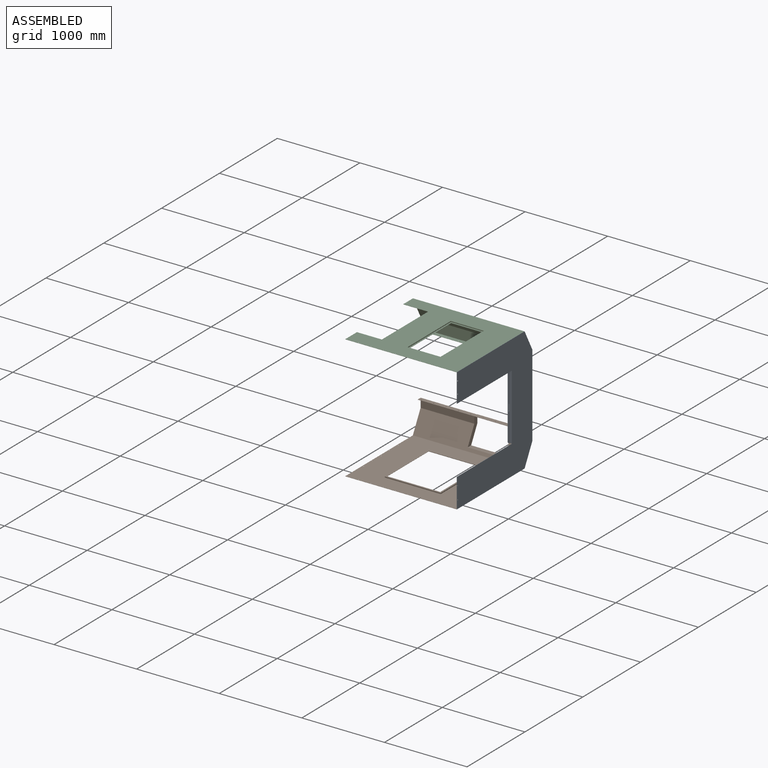
[diagram: assembled view]
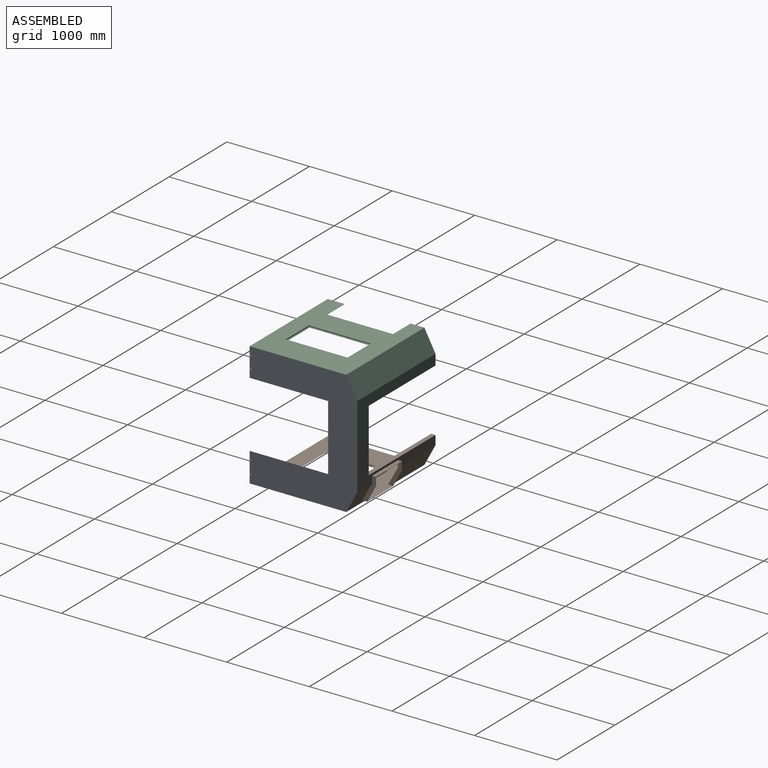
[diagram: assembled view, second angle]
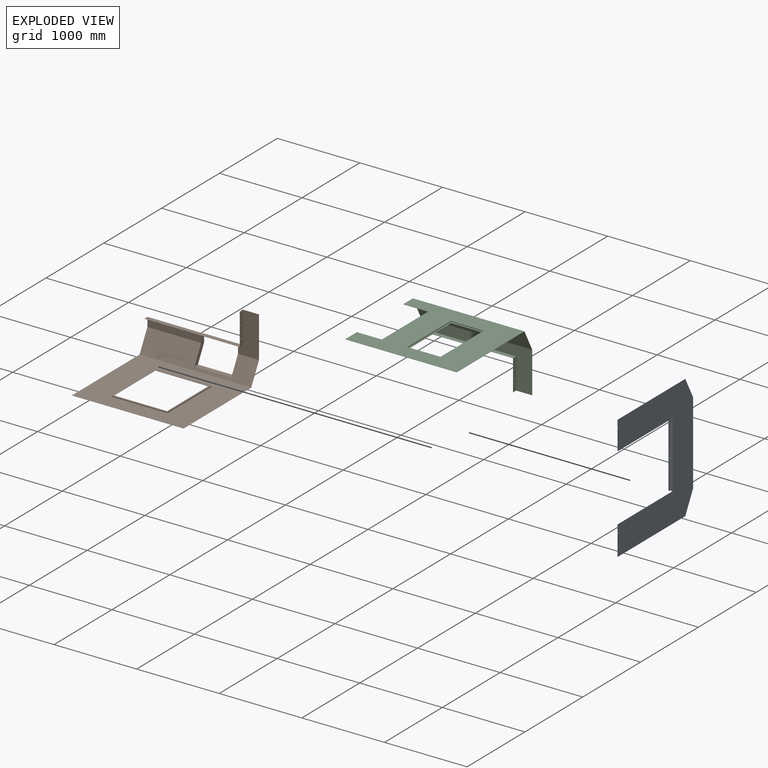
[diagram: exploded view]
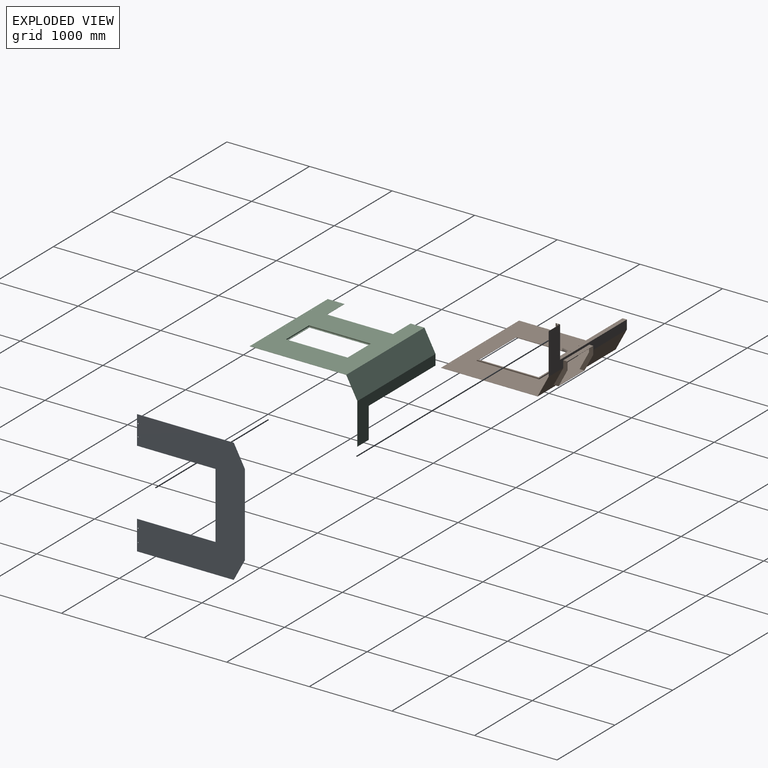
[diagram: exploded view, second angle]
ASSEMBLY  parts=3 mates=2
PART A: 30 faces, bbox 52x1304.5x1501 mm
  f0: plane 352x5mm, normal (0,-1,0), area 1760mm2, adj f1,f2,f3,f8
  f1: plane 352x15mm, normal (1,0,0), area 5280mm2, adj f0,f3,f8,f11
  f2: plane 352x15mm, normal (-1,0,0), area 5280mm2, adj f0,f3,f8,f11
  f3: plane 15x5mm, normal (0,0,1), area 75mm2, adj f0,f1,f2,f11
  f4: plane 368x5mm, normal (0,-1,0), area 1840mm2, adj f5,f6,f7,f13
  f5: plane 368x15mm, normal (-1,0,0), area 5520mm2, adj f4,f7,f11,f13
  f6: plane 368x15mm, normal (1,0,0), area 5520mm2, adj f4,f7,f11,f13
  f7: plane 15x5mm, normal (0,0,-1), area 75mm2, adj f4,f5,f6,f11
  f8: plane 50x17mm, normal (0,0,-1), area 175mm2, adj f0,f1,f2,f9,f10,f11,f12,f28
  f9: plane 352x5mm, normal (0,1,0), area 1760mm2, adj f8,f28
  f10: plane 1501x1304.5mm, normal (-1,0,0), area 1161924.9mm2, adj f8,f13,f14,f15,f16,f17,f18,f19
  f11: plane 800x52mm, normal (0,-1,0), area 38000mm2, adj f1,f2,f3,f5,f6,f7,f8,f12
  f12: plane 800x2mm, normal (-1,0,0), area 1600mm2, adj f8,f11,f13,f28
  f13: plane 50x17mm, normal (0,0,1), area 175mm2, adj f4,f5,f6,f10,f11,f12,f28,f29
  f14: plane 251.79x134.3mm, normal (0,0.88,-0.47), area 570.7mm2, adj f10,f15,f22,f27
  f15: plane 997.42x2mm, normal (0,1,0), area 1994.8mm2, adj f10,f14,f16,f27
  f16: plane 251.79x134.3mm, normal (0,0.88,0.47), area 570.7mm2, adj f10,f15,f17,f27
  f17: plane 1170.2x2mm, normal (0,0,1), area 2340.4mm2, adj f10,f16,f18,f27
  f18: plane 345.5x2mm, normal (0,-1,0), area 691mm2, adj f10,f17,f19,f27
  f19: plane 950.5x2mm, normal (0,0,-1), area 1901mm2, adj f10,f11,f18,f27
  f20: plane 950.5x2mm, normal (0,0,1), area 1901mm2, adj f10,f11,f21,f27
  f21: plane 355.5x2mm, normal (0,-1,0), area 711mm2, adj f10,f20,f22,f27
  f22: plane 1170.2x2mm, normal (0,0,-1), area 2340.4mm2, adj f10,f14,f21,f27
  f23: cylinder r=5mm len=10mm, axis (1,0,0), area 62.8mm2, adj f10,f27
  f24: cylinder r=5mm len=10mm, axis (1,0,0), area 62.8mm2, adj f10,f27
  f25: cylinder r=5mm len=10mm, axis (1,0,0), area 62.8mm2, adj f10,f27
  f26: cylinder r=5mm len=10mm, axis (1,0,0), area 62.8mm2, adj f10,f27
  f27: plane 1501x1304.5mm, normal (1,0,0), area 1163524.9mm2, adj f11,f14,f15,f16,f17,f18,f19,f20
  f28: plane 800x50mm, normal (0,1,0), area 36400mm2, adj f8,f9,f10,f12,f13,f29
  f29: plane 368x5mm, normal (0,1,0), area 1840mm2, adj f13,f28
PART B: 69 faces, bbox 1350x1354.5x750.5 mm
  f0: plane 641.23x2mm, normal (0,-1,0), area 1282.5mm2, adj f1,f3,f4,f13
  f1: plane 719.9x2mm, normal (1,0,0), area 1439.8mm2, adj f0,f2,f4,f13
  f2: plane 641.23x2mm, normal (0,1,0), area 1282.5mm2, adj f1,f3,f4,f13
  f3: plane 719.9x2mm, normal (-1,0,0), area 1439.8mm2, adj f0,f2,f4,f13
  f4: plane 751.9x673.23mm, normal (0,0,-1), area 44580.2mm2, adj f0,f1,f2,f3,f5,f6,f7,f8
  f5: plane 751.9x12mm, normal (-1,0,0), area 9022.8mm2, adj f4,f6,f8,f68
  f6: plane 673.23x12mm, normal (0,1,0), area 8078.8mm2, adj f4,f5,f7,f68
  f7: plane 751.9x12mm, normal (1,0,0), area 9022.8mm2, adj f4,f6,f8,f68
  f8: plane 673.23x12mm, normal (0,-1,0), area 8078.8mm2, adj f4,f5,f7,f68
  f9: cylinder r=5mm len=10mm, axis (0,0,1), area 62.8mm2, adj f67,f68
  f10: plane 677.23x12mm, normal (0,-1,0), area 8126.8mm2, adj f11,f13,f14,f67
  f11: plane 755.9x12mm, normal (-1,0,0), area 9070.8mm2, adj f10,f12,f13,f67
  f12: plane 677.23x12mm, normal (0,1,0), area 8126.8mm2, adj f11,f13,f14,f67
  f13: plane 755.9x677.23mm, normal (0,0,1), area 50296.7mm2, adj f0,f1,f2,f3,f10,f11,f12,f14
  f14: plane 755.9x12mm, normal (1,0,0), area 9070.8mm2, adj f10,f12,f13,f67
  f15: cylinder r=5mm len=10mm, axis (0,0,1), area 62.8mm2, adj f67,f68
  f16: cylinder r=5mm len=10mm, axis (0,0,1), area 62.8mm2, adj f67,f68
  f17: cylinder r=5mm len=10mm, axis (0,0,1), area 62.8mm2, adj f67,f68
  f18: cylinder r=5mm len=10mm, axis (0,0,1), area 62.8mm2, adj f67,f68
  f19: cylinder r=5mm len=10mm, axis (0,0,1), area 62.8mm2, adj f67,f68
  f20: cylinder r=5mm len=10mm, axis (0,0,1), area 62.8mm2, adj f67,f68
  f21: cylinder r=5mm len=10mm, axis (0,0,1), area 62.8mm2, adj f67,f68
  f22: cylinder r=5mm len=10mm, axis (0,0,1), area 62.8mm2, adj f67,f68
  f23: cylinder r=5mm len=10mm, axis (0,0,1), area 62.8mm2, adj f67,f68
  f24: cylinder r=5mm len=10mm, axis (0,0,1), area 62.8mm2, adj f67,f68
  f25: cylinder r=5mm len=10mm, axis (0,0,1), area 62.8mm2, adj f67,f68
  f26: cylinder r=5mm len=10mm, axis (0,0,1), area 62.8mm2, adj f67,f68
  f27: cylinder r=5mm len=10mm, axis (0,0,1), area 62.8mm2, adj f67,f68
  f28: cylinder r=5mm len=10mm, axis (0,0,1), area 62.8mm2, adj f67,f68
  f29: plane 1304.5x362.41mm, normal (-1,0,0), area 3229mm2, adj f38,f46,f49,f61,f62,f63,f64,f66
  f30: cylinder r=5mm len=10mm, axis (0,0,1), area 62.8mm2, adj f46,f49
  f31: cylinder r=5mm len=10mm, axis (0,0,1), area 62.8mm2, adj f46,f49
  f32: cylinder r=5mm len=10mm, axis (0,0,1), area 62.8mm2, adj f46,f49
  f33: cylinder r=5mm len=10mm, axis (0,0,1), area 62.8mm2, adj f46,f49
  f34: cylinder r=5mm len=10mm, axis (0,0,1), area 62.8mm2, adj f46,f49
  f35: cylinder r=5mm len=10mm, axis (0,0,1), area 62.8mm2, adj f46,f49
  f36: cylinder r=5mm len=10mm, axis (0,0,1), area 62.8mm2, adj f46,f49
  f37: cylinder r=5mm len=10mm, axis (0,0,1), area 62.8mm2, adj f46,f49
  f38: plane 1156.28x390.09mm, normal (0,-1,0), area 3088.7mm2, adj f29,f42,f46,f47,f49,f50
  f39: cylinder r=5mm len=10mm, axis (-1,0,0), area 62.8mm2, adj f47,f50
  f40: cylinder r=5mm len=10mm, axis (-1,0,0), area 62.8mm2, adj f47,f50
  f41: cylinder r=5mm len=10mm, axis (-1,0,0), area 62.8mm2, adj f47,f50
  f42: plane 195.72x52mm, normal (0,0,1), area 491.4mm2, adj f38,f47,f50,f61,f64,f65
  f43: plane 450x96.63mm, normal (0,1,0), area 1278.5mm2, adj f44,f48,f51,f53,f54,f57,f58,f59
  f44: plane 203.37x108.48mm, normal (0,0.88,-0.47), area 458.7mm2, adj f43,f45,f48,f51
  f45: plane 2x2mm, normal (0.71,0,-0.71), area 1.5mm2, adj f44,f48,f52
  f46: plane 1154.28x52mm, normal (0,0,1), area 59394.2mm2, adj f29,f30,f31,f32,f33,f34,f35,f36
  f47: plane 388.09x52mm, normal (-1,0,0), area 19944.8mm2, adj f38,f39,f40,f41,f42,f46,f64
  f48: plane 296x166.34mm, normal (1,0,0), area 16833.5mm2, adj f43,f44,f45,f54,f55,f61,f62
  f49: plane 1156.28x50mm, normal (0,0,-1), area 57185.7mm2, adj f29,f30,f31,f32,f33,f34,f35,f36
  f50: plane 390.09x50mm, normal (1,0,0), area 19268.6mm2, adj f38,f39,f40,f41,f42,f49,f61
  f51: plane 300x165.14mm, normal (-1,0,0), area 16397.7mm2, adj f43,f44,f53,f56,f63,f64
  f52: plane 450x2mm, normal (0,1,0), area 896mm2, adj f45,f55,f56,f60
  f53: plane 450x50mm, normal (0,0,1), area 22500mm2, adj f43,f51,f57,f64
  f54: plane 446x52mm, normal (0,0,-1), area 23192mm2, adj f43,f48,f59,f61
  f55: plane 446x57.87mm, normal (0,0,1), area 25809mm2, adj f48,f52,f59,f62
  f56: plane 450x56.67mm, normal (0,0,-1), area 25500.5mm2, adj f51,f52,f57,f63
  f57: plane 300x165.14mm, normal (1,0,0), area 16397.7mm2, adj f43,f53,f56,f58,f63,f64
  f58: plane 203.37x108.48mm, normal (0,0.88,-0.47), area 458.7mm2, adj f43,f57,f59,f60
  f59: plane 296x166.34mm, normal (-1,0,0), area 16833.5mm2, adj f43,f54,f55,f58,f60,f61,f62
  f60: plane 2x2mm, normal (-0.71,0,-0.71), area 1.5mm2, adj f52,f58,f59
  f61: plane 1350x498.21mm, normal (0,-1,0), area 185131.5mm2, adj f29,f42,f48,f49,f50,f54,f59,f62
  f62: plane 1350x250.29mm, normal (0,-0.88,0.47), area 274589.2mm2, adj f29,f48,f55,f59,f61,f65,f67
  f63: plane 1350x251.79mm, normal (0,0.88,-0.47), area 275147.4mm2, adj f29,f51,f56,f57,f64,f65,f68
  f64: plane 1350x498.71mm, normal (0,1,0), area 187443.8mm2, adj f29,f42,f46,f47,f51,f53,f57,f63
  f65: plane 1304.5x750.5mm, normal (1,0,0), area 3905.2mm2, adj f42,f61,f62,f63,f64,f66,f67,f68
  f66: plane 1350x2mm, normal (0,-1,0), area 2700mm2, adj f29,f65,f67,f68
  f67: plane 1350x1169mm, normal (0,0,1), area 1065052.5mm2, adj f9,f10,f11,f12,f14,f15,f16,f17
  f68: plane 1350x1170.2mm, normal (0,0,-1), area 1072389mm2, adj f5,f6,f7,f8,f9,f15,f16,f17
PART C: 83 faces, bbox 1350x1304.5x750.5 mm
  f0: cylinder r=5mm len=10mm, axis (0,0,-1), area 62.8mm2, adj f1,f3
  f1: plane 1156.28x50mm, normal (0,0,1), area 57185.7mm2, adj f0,f2,f4,f5,f6,f7,f8,f11
  f2: cylinder r=5mm len=10mm, axis (0,0,-1), area 62.8mm2, adj f1,f3
  f3: plane 1154.28x52mm, normal (0,0,-1), area 59394.2mm2, adj f0,f2,f4,f5,f6,f7,f8,f11
  f4: cylinder r=5mm len=10mm, axis (0,0,-1), area 62.8mm2, adj f1,f3
  f5: cylinder r=5mm len=10mm, axis (0,0,-1), area 62.8mm2, adj f1,f3
  f6: cylinder r=5mm len=10mm, axis (0,0,-1), area 62.8mm2, adj f1,f3
  f7: cylinder r=5mm len=10mm, axis (0,0,-1), area 62.8mm2, adj f1,f3
  f8: cylinder r=5mm len=10mm, axis (0,0,-1), area 62.8mm2, adj f1,f3
  f9: cylinder r=5mm len=10mm, axis (-1,0,0), area 62.8mm2, adj f14,f19
  f10: cylinder r=5mm len=10mm, axis (-1,0,0), area 62.8mm2, adj f14,f19
  f11: plane 1156.28x374.09mm, normal (0,-1,0), area 3056.7mm2, adj f1,f3,f12,f14,f19,f20
  f12: plane 195.72x52mm, normal (0,0,-1), area 491.4mm2, adj f11,f14,f19,f78,f81,f82
  f13: cylinder r=5mm len=10mm, axis (0,0,-1), area 62.8mm2, adj f1,f3
  f14: plane 374.09x50mm, normal (1,0,0), area 18547.2mm2, adj f1,f9,f10,f11,f12,f82
  f15: plane 368x2mm, normal (0,1,0), area 736mm2, adj f16,f17,f21,f22
  f16: plane 715.9x2mm, normal (1,0,0), area 1431.8mm2, adj f15,f18,f21,f22
  f17: plane 715.9x2mm, normal (-1,0,0), area 1431.8mm2, adj f15,f18,f21,f22
  f18: plane 368x2mm, normal (0,-1,0), area 736mm2, adj f16,f17,f21,f22
  f19: plane 372.09x52mm, normal (-1,0,0), area 19191.4mm2, adj f3,f9,f10,f11,f12,f81
  f20: plane 378.41x302.5mm, normal (-1,0,0), area 1257mm2, adj f1,f3,f11,f74,f75,f76,f79,f80
  f21: plane 751.9x404mm, normal (0,0,-1), area 40316.4mm2, adj f15,f16,f17,f18,f23,f24,f25,f26
  f22: plane 747.9x400mm, normal (0,0,1), area 35708.8mm2, adj f15,f16,f17,f18,f27,f28,f29,f30
  f23: plane 404x12mm, normal (0,-1,0), area 4848mm2, adj f21,f24,f26,f76
  f24: plane 751.9x12mm, normal (1,0,0), area 9022.8mm2, adj f21,f23,f25,f76
  f25: plane 404x12mm, normal (0,1,0), area 4848mm2, adj f21,f24,f26,f76
  f26: plane 751.9x12mm, normal (-1,0,0), area 9022.8mm2, adj f21,f23,f25,f76
  f27: plane 400x12mm, normal (0,1,0), area 4800mm2, adj f22,f28,f30,f75
  f28: plane 747.9x12mm, normal (-1,0,0), area 8974.8mm2, adj f22,f27,f29,f75
  f29: plane 400x12mm, normal (0,-1,0), area 4800mm2, adj f22,f28,f30,f75
  f30: plane 747.9x12mm, normal (1,0,0), area 8974.8mm2, adj f22,f27,f29,f75
  f31: cylinder r=5mm len=5mm, axis (0,0,1), area 15.7mm2, adj f32,f33,f75,f76
  f32: cylinder r=5mm len=5mm, axis (0,0,1), area 15.7mm2, adj f31,f34,f75,f76
  f33: cylinder r=5mm len=5mm, axis (0,0,1), area 15.7mm2, adj f31,f34,f75,f76
  f34: cylinder r=5mm len=5mm, axis (0,0,1), area 15.7mm2, adj f32,f33,f75,f76
  f35: cylinder r=5mm len=5mm, axis (0,0,1), area 15.7mm2, adj f36,f37,f75,f76
  f36: cylinder r=5mm len=5mm, axis (0,0,1), area 15.7mm2, adj f35,f38,f75,f76
  f37: cylinder r=5mm len=5mm, axis (0,0,1), area 15.7mm2, adj f35,f38,f75,f76
  f38: cylinder r=5mm len=5mm, axis (0,0,1), area 15.7mm2, adj f36,f37,f75,f76
  f39: cylinder r=5mm len=5mm, axis (0,0,1), area 15.7mm2, adj f40,f41,f75,f76
  f40: cylinder r=5mm len=5mm, axis (0,0,1), area 15.7mm2, adj f39,f42,f75,f76
  f41: cylinder r=5mm len=5mm, axis (0,0,1), area 15.7mm2, adj f39,f42,f75,f76
  f42: cylinder r=5mm len=5mm, axis (0,0,1), area 15.7mm2, adj f40,f41,f75,f76
  f43: cylinder r=5mm len=5mm, axis (0,0,1), area 15.7mm2, adj f44,f45,f75,f76
  f44: cylinder r=5mm len=5mm, axis (0,0,1), area 15.7mm2, adj f43,f46,f75,f76
  f45: cylinder r=5mm len=5mm, axis (0,0,1), area 15.7mm2, adj f43,f46,f75,f76
  f46: cylinder r=5mm len=5mm, axis (0,0,1), area 15.7mm2, adj f44,f45,f75,f76
  f47: cylinder r=5mm len=5mm, axis (0,0,1), area 15.7mm2, adj f48,f49,f75,f76
  f48: cylinder r=5mm len=5mm, axis (0,0,1), area 15.7mm2, adj f47,f50,f75,f76
  f49: cylinder r=5mm len=5mm, axis (0,0,1), area 15.7mm2, adj f47,f50,f75,f76
  f50: cylinder r=5mm len=5mm, axis (0,0,1), area 15.7mm2, adj f48,f49,f75,f76
  f51: cylinder r=5mm len=5mm, axis (0,0,1), area 15.7mm2, adj f52,f53,f75,f76
  f52: cylinder r=5mm len=5mm, axis (0,0,1), area 15.7mm2, adj f51,f54,f75,f76
  f53: cylinder r=5mm len=5mm, axis (0,0,1), area 15.7mm2, adj f51,f54,f75,f76
  f54: cylinder r=5mm len=5mm, axis (0,0,1), area 15.7mm2, adj f52,f53,f75,f76
  f55: cylinder r=5mm len=5mm, axis (0,0,1), area 15.7mm2, adj f56,f57,f75,f76
  f56: cylinder r=5mm len=5mm, axis (0,0,1), area 15.7mm2, adj f55,f58,f75,f76
  f57: cylinder r=5mm len=5mm, axis (0,0,1), area 15.7mm2, adj f55,f58,f75,f76
  f58: cylinder r=5mm len=5mm, axis (0,0,1), area 15.7mm2, adj f56,f57,f75,f76
  f59: cylinder r=5mm len=5mm, axis (0,0,1), area 15.7mm2, adj f60,f61,f75,f76
  f60: cylinder r=5mm len=5mm, axis (0,0,1), area 15.7mm2, adj f59,f62,f75,f76
  f61: cylinder r=5mm len=5mm, axis (0,0,1), area 15.7mm2, adj f59,f62,f75,f76
  f62: cylinder r=5mm len=5mm, axis (0,0,1), area 15.7mm2, adj f60,f61,f75,f76
  f63: cylinder r=5mm len=5mm, axis (0,0,1), area 15.7mm2, adj f64,f65,f75,f76
  f64: cylinder r=5mm len=5mm, axis (0,0,1), area 15.7mm2, adj f63,f66,f75,f76
  f65: cylinder r=5mm len=5mm, axis (0,0,1), area 15.7mm2, adj f63,f66,f75,f76
  f66: cylinder r=5mm len=5mm, axis (0,0,1), area 15.7mm2, adj f64,f65,f75,f76
  f67: cylinder r=5mm len=5mm, axis (0,0,1), area 15.7mm2, adj f68,f69,f75,f76
  f68: cylinder r=5mm len=5mm, axis (0,0,1), area 15.7mm2, adj f67,f70,f75,f76
  f69: cylinder r=5mm len=5mm, axis (0,0,1), area 15.7mm2, adj f67,f70,f75,f76
  f70: cylinder r=5mm len=5mm, axis (0,0,1), area 15.7mm2, adj f68,f69,f75,f76
  f71: plane 202x2mm, normal (-1,0,0), area 404mm2, adj f72,f75,f76,f77
  f72: plane 302x2mm, normal (0,1,0), area 604mm2, adj f71,f73,f75,f76
  f73: plane 800x2mm, normal (-1,0,0), area 1600mm2, adj f72,f74,f75,f76
  f74: plane 302x2mm, normal (0,-1,0), area 604mm2, adj f20,f73,f75,f76
  f75: plane 1350x1170.2mm, normal (0,0,1), area 1038224.6mm2, adj f20,f27,f28,f29,f30,f31,f32,f33
  f76: plane 1350x1169mm, normal (0,0,-1), area 1031997mm2, adj f20,f23,f24,f25,f26,f31,f32,f33
  f77: plane 1350x2mm, normal (0,-1,0), area 2700mm2, adj f71,f75,f76,f78
  f78: plane 1304.5x750.5mm, normal (1,0,0), area 3905.2mm2, adj f12,f75,f76,f77,f79,f80,f81,f82
  f79: plane 1350x251.79mm, normal (0,0.88,0.47), area 385245.8mm2, adj f20,f75,f78,f81
  f80: plane 1350x250.29mm, normal (0,-0.88,-0.47), area 382950.8mm2, adj f20,f76,f78,f82
  f81: plane 1350x498.71mm, normal (0,1,0), area 243768.5mm2, adj f3,f12,f19,f20,f78,f79
  f82: plane 1350x498.21mm, normal (0,-1,0), area 240036.7mm2, adj f1,f12,f14,f20,f78,f80
PLACE A t=(498.59,-172.35,-442.91)mm fixed
PLACE B t=(498.59,-172.35,-442.91)mm
PLACE C t=(498.59,-172.35,-442.91)mm
MATE fastened C.f78 <-> A.f10  axis (1,0,0) through (496.59,-174.35,1058.09)mm
MATE fastened B.f65 <-> A.f10  axis (1,0,0) through (496.59,-174.35,-442.91)mm
